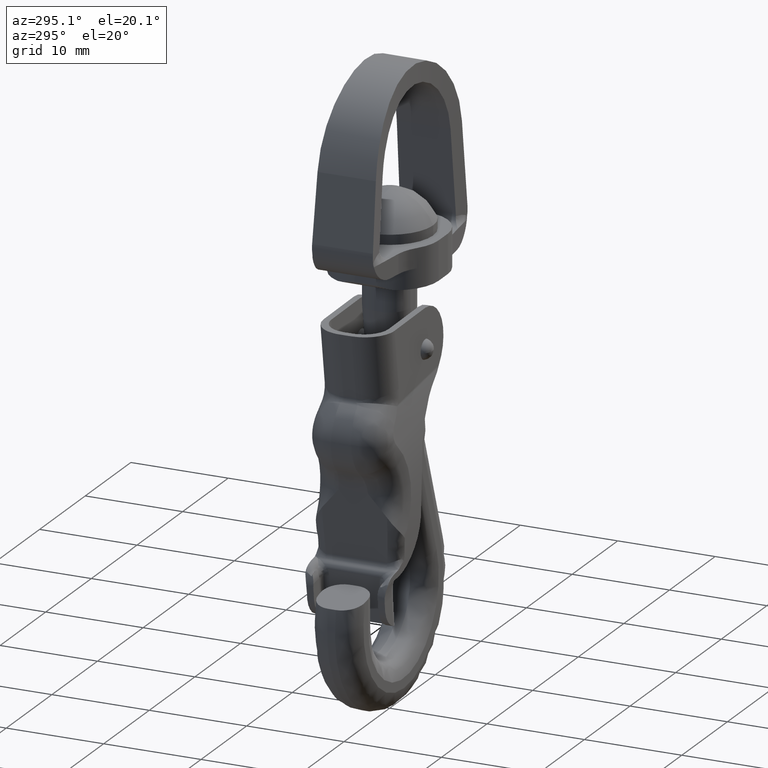
[diagram: clean part render]
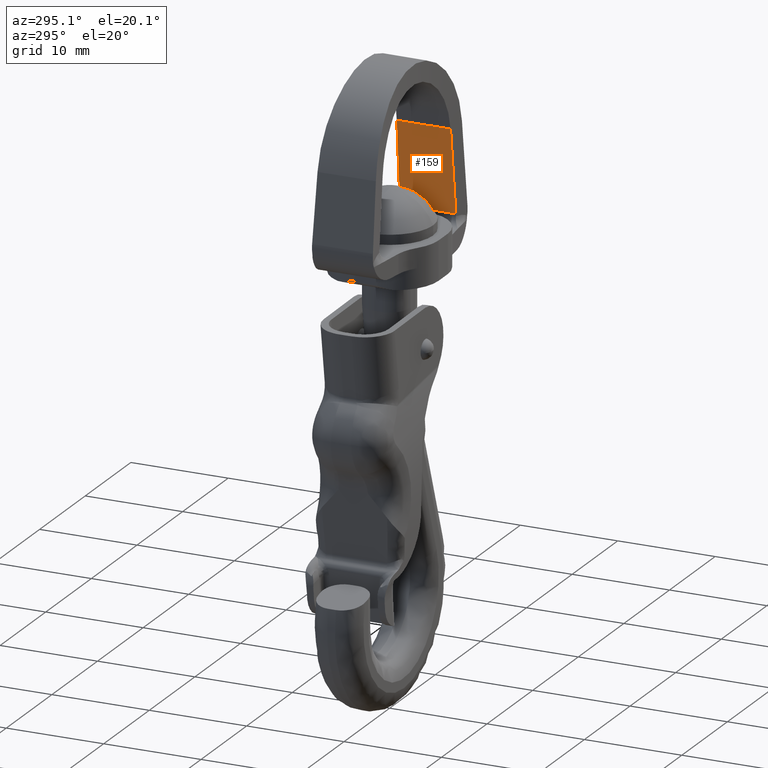
[diagram: same view with one face highlighted and labeled with its STEP entity id]
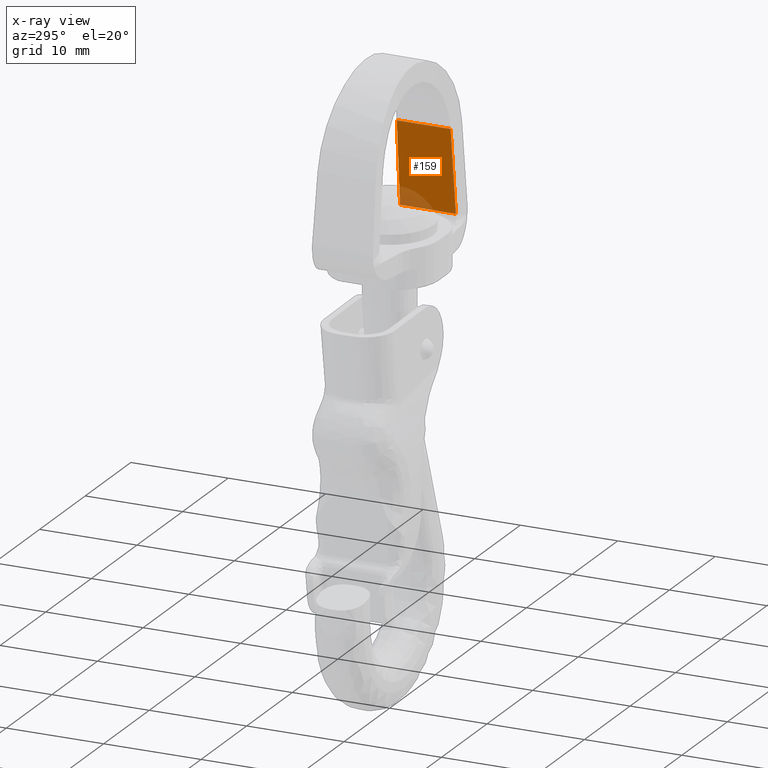
[diagram: x-ray of the same camera — body ghosted, the highlighted face saturated]
A machine part, auxiliary view. The second image highlights one B-rep face of the part: STEP entity #159.
The next image is the same camera in x-ray: the body ghosted, the highlighted face saturated — about 9% of this face is hidden behind the body in this view.
In plain terms, the highlighted planar face has unit normal (-0.9943, 0, -0.1066).
Its self-contained STEP definition (entity closure, byte-faithful):
#159=ADVANCED_FACE('',(#451),#450,.T.);
#450=PLANE('',#2453);
#451=FACE_OUTER_BOUND('',#2454,.T.);
#2450=CARTESIAN_POINT('',(8.48221706843E+00,-3.43941007719E+00,2.23730209978E+00));
#2451=DIRECTION('',(-9.94304406031E-01,0.00000000000E+00,-1.06577427943E-01));
#2452=DIRECTION('',(-1.06577427943E-01,0.00000000000E+00,9.94304406031E-01));
#2453=AXIS2_PLACEMENT_3D('',#2450,#2451,#2452);
#2454=EDGE_LOOP('',(#5605,#5606,#5607,#5608));
#5605=ORIENTED_EDGE('',*,*,#6648,.T.);
#5606=ORIENTED_EDGE('',*,*,#6682,.F.);
#5607=ORIENTED_EDGE('',*,*,#6683,.T.);
#5608=ORIENTED_EDGE('',*,*,#6680,.T.);
#6648=EDGE_CURVE('',#7321,#7314,#7322,.T.);
#6680=EDGE_CURVE('',#7540,#7321,#7541,.T.);
#6682=EDGE_CURVE('',#7553,#7314,#7554,.T.);
#6683=EDGE_CURVE('',#7553,#7540,#7560,.T.);
#7314=VERTEX_POINT('',#10896);
#7321=VERTEX_POINT('',#10901);
#7322=(BOUNDED_CURVE() B_SPLINE_CURVE(2,(#10902,#10903,#10904),.UNSPECIFIED.,.F.,.F.) B_SPLINE_CURVE_WITH_KNOTS((3,3),(-1.46594591572E+00,-1.45278755915E+00),.UNSPECIFIED.) CURVE() GEOMETRIC_REPRESENTATION_ITEM() RATIONAL_B_SPLINE_CURVE((1.00000000000E+00,9.99978357285E-01,1.00000000000E+00)) REPRESENTATION_ITEM('') );
#7540=VERTEX_POINT('',#11153);
#7541=LINE('',#11154,#11155);
#7553=VERTEX_POINT('',#11195);
#7554=LINE('',#11196,#11197);
#7560=(BOUNDED_CURVE() B_SPLINE_CURVE(2,(#11199,#11200,#11201),.UNSPECIFIED.,.F.,.F.) B_SPLINE_CURVE_WITH_KNOTS((3,3),(-4.83039774803E+00,-4.81723939146E+00),.UNSPECIFIED.) CURVE() GEOMETRIC_REPRESENTATION_ITEM() RATIONAL_B_SPLINE_CURVE((1.00000000000E+00,9.99978357285E-01,1.00000000000E+00)) REPRESENTATION_ITEM('') );
#10896=CARTESIAN_POINT('',(8.38904124814E+00,2.86617506433E+00,3.10657742794E+00));
#10901=CARTESIAN_POINT('',(7.45728304523E+00,2.76191776736E+00,1.17993307096E+01));
#10902=CARTESIAN_POINT('',(7.45728304523E+00,2.76191776736E+00,1.17993307096E+01));
#10903=CARTESIAN_POINT('',(7.92350511531E+00,2.81098126995E+00,7.44975437425E+00));
#10904=CARTESIAN_POINT('',(8.38904124814E+00,2.86617506433E+00,3.10657742794E+00));
#11153=CARTESIAN_POINT('',(7.45728304523E+00,-2.76191776736E+00,1.17993307096E+01));
#11154=CARTESIAN_POINT('',(7.45728304523E+00,-2.76191776736E+00,1.17993307096E+01));
#11155=VECTOR('',#11156,5.52383553472E+00);
#11156=DIRECTION('',(0.00000000000E+00,1.00000000000E+00,0.00000000000E+00));
#11195=CARTESIAN_POINT('',(8.38904124814E+00,-2.86617506433E+00,3.10657742794E+00));
#11196=CARTESIAN_POINT('',(8.38904124814E+00,-2.86617506433E+00,3.10657742794E+00));
#11197=VECTOR('',#11198,5.73235012866E+00);
#11198=DIRECTION('',(0.00000000000E+00,1.00000000000E+00,0.00000000000E+00));
#11199=CARTESIAN_POINT('',(8.38904124814E+00,-2.86617506433E+00,3.10657742794E+00));
#11200=CARTESIAN_POINT('',(7.92350511531E+00,-2.81098126995E+00,7.44975437425E+00));
#11201=CARTESIAN_POINT('',(7.45728304523E+00,-2.76191776736E+00,1.17993307096E+01));